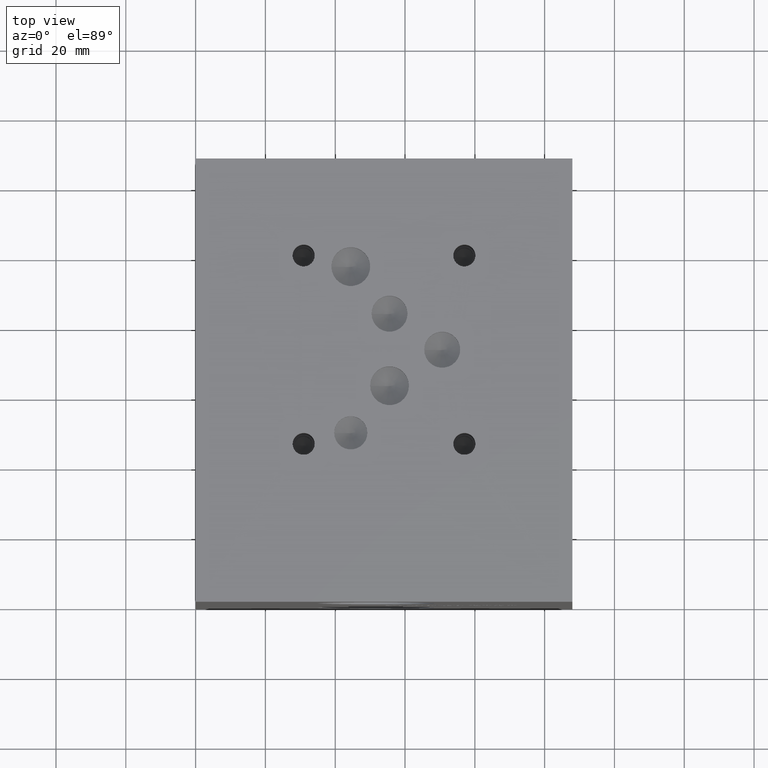
[diagram: clean part render]
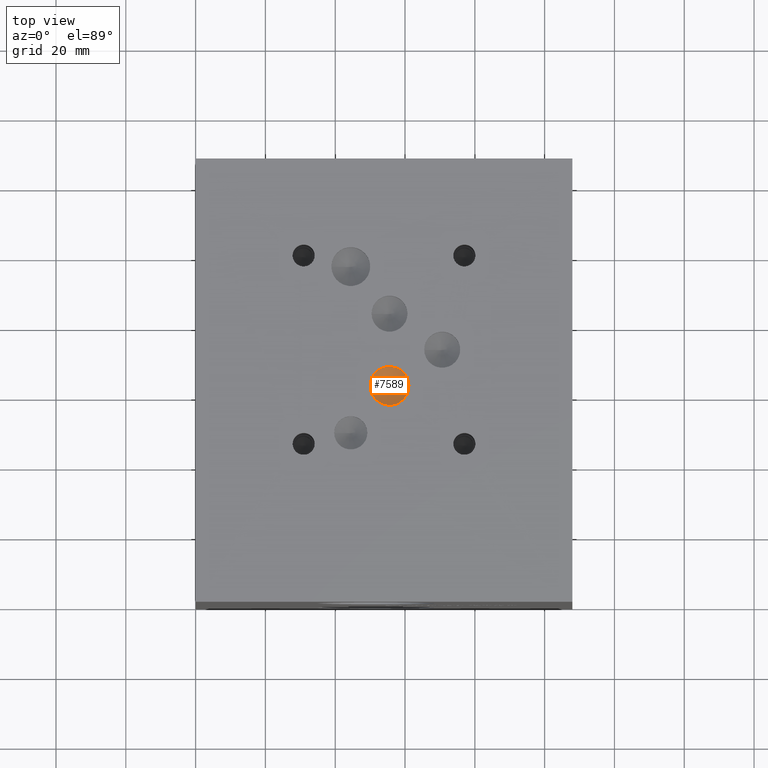
[diagram: same view with one face highlighted and labeled with its STEP entity id]
A machine part, top view. The second image highlights one B-rep face of the part: STEP entity #7589.
In plain terms, the highlighted conical surface has half-angle 60 deg.
Its self-contained STEP definition (entity closure, byte-faithful):
#49=CONICAL_SURFACE('',#7909,2.7813,1.0471975511966);
#78=CIRCLE('',#7910,5.5626);
#79=CIRCLE('',#7911,5.5626);
#806=FACE_OUTER_BOUND('',#1223,.T.);
#1223=EDGE_LOOP('',(#6527,#6528,#6529,#6530));
#2009=LINE('',#12683,#2752);
#2752=VECTOR('',#9252,2.7813);
#3592=VERTEX_POINT('',#12679);
#3593=VERTEX_POINT('',#12680);
#3594=VERTEX_POINT('',#12682);
#4606=EDGE_CURVE('',#3592,#3593,#78,.T.);
#4607=EDGE_CURVE('',#3593,#3594,#2009,.T.);
#4608=EDGE_CURVE('',#3593,#3592,#79,.T.);
#6527=ORIENTED_EDGE('',*,*,#4606,.T.);
#6528=ORIENTED_EDGE('',*,*,#4607,.T.);
#6529=ORIENTED_EDGE('',*,*,#4607,.F.);
#6530=ORIENTED_EDGE('',*,*,#4608,.T.);
#7589=ADVANCED_FACE('',(#806),#49,.F.);
#7909=AXIS2_PLACEMENT_3D('',#12678,#9248,#9249);
#7910=AXIS2_PLACEMENT_3D('',#12681,#9250,#9251);
#7911=AXIS2_PLACEMENT_3D('',#12684,#9253,#9254);
#9248=DIRECTION('center_axis',(0.,0.,1.));
#9249=DIRECTION('ref_axis',(1.,0.,0.));
#9250=DIRECTION('center_axis',(0.,0.,1.));
#9251=DIRECTION('ref_axis',(1.,0.,0.));
#9252=DIRECTION('',(0.866025403784439,1.06057523872491E-16,-0.5));
#9253=DIRECTION('center_axis',(0.,0.,1.));
#9254=DIRECTION('ref_axis',(1.,0.,0.));
#12678=CARTESIAN_POINT('Origin',(55.55488,61.88202,122.182645696303));
#12679=CARTESIAN_POINT('',(61.11748,61.88202,123.78843));
#12680=CARTESIAN_POINT('',(49.99228,61.88202,123.78843));
#12681=CARTESIAN_POINT('Origin',(55.55488,61.88202,123.78843));
#12682=CARTESIAN_POINT('',(55.55488,61.88202,120.576861392606));
#12683=CARTESIAN_POINT('',(52.77358,61.88202,122.182645696303));
#12684=CARTESIAN_POINT('Origin',(55.55488,61.88202,123.78843));